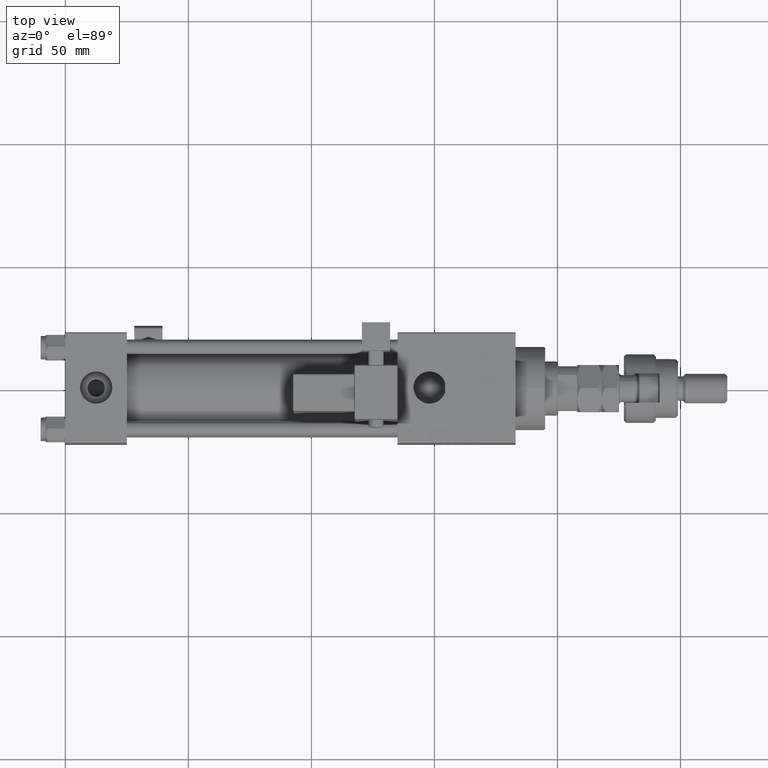
[diagram: clean part render]
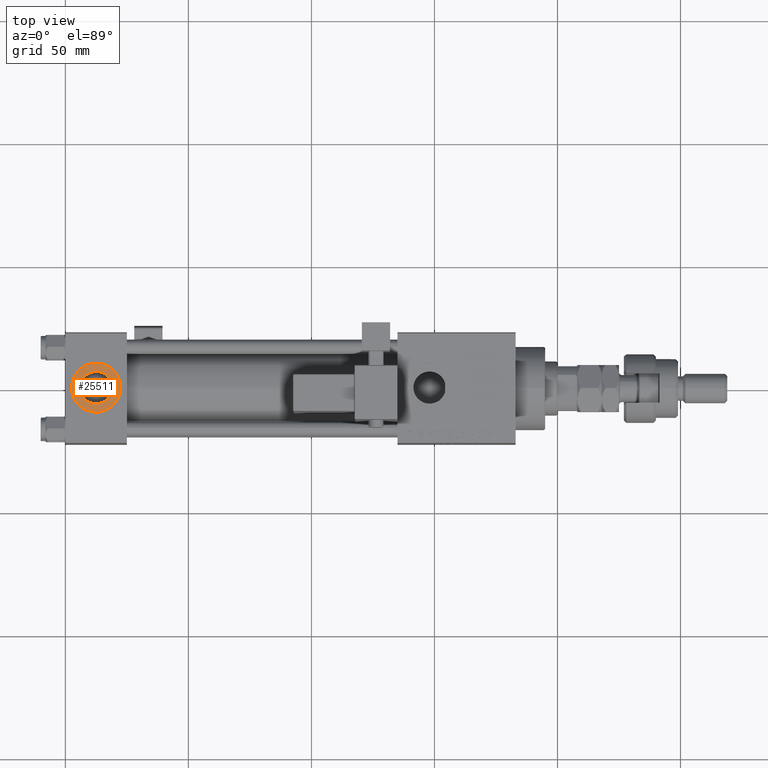
[diagram: same view with one face highlighted and labeled with its STEP entity id]
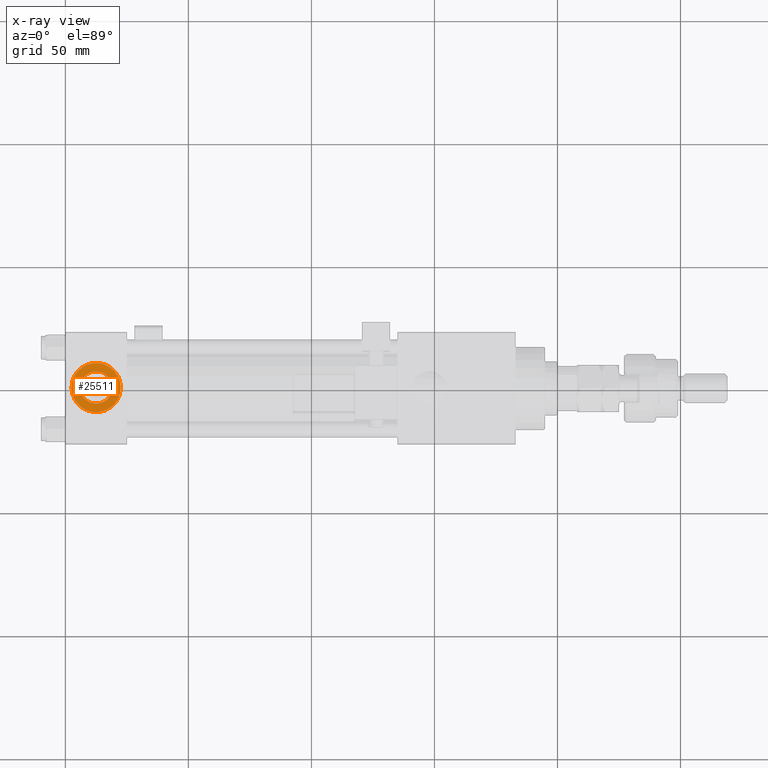
[diagram: x-ray of the same camera — body ghosted, the highlighted face saturated]
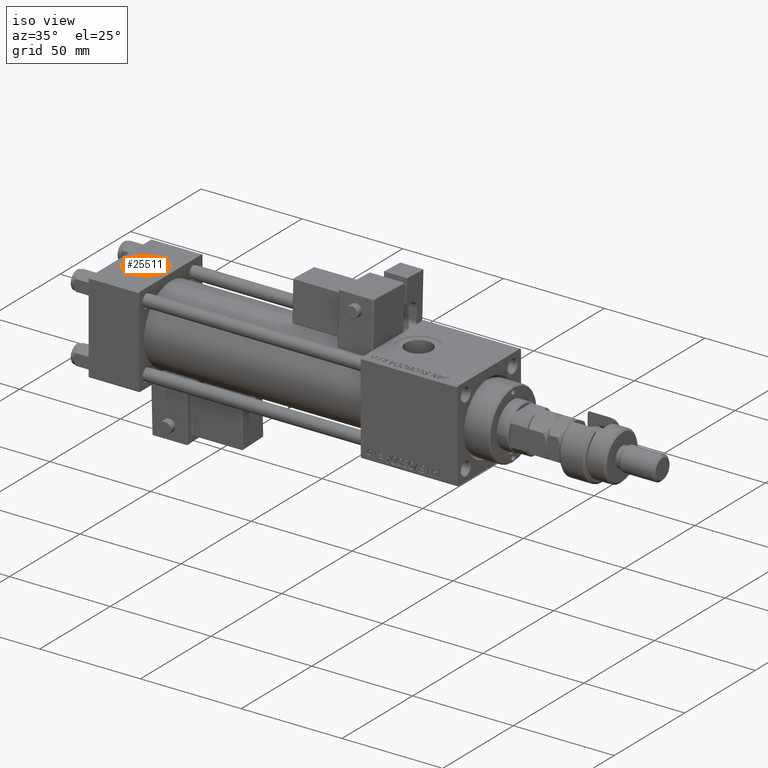
[diagram: same view with one face highlighted and labeled with its STEP entity id]
A machine part, top view. The second image highlights one B-rep face of the part: STEP entity #25511.
The next image is the same camera in x-ray: the body ghosted, the highlighted face saturated — about 0% of this face is hidden behind the body in this view.
A second angle (iso view) of the same face is appended — the face is thin or edge-on in the first view.
In plain terms, the highlighted planar face has unit normal (0, 0, 1).
Its self-contained STEP definition (entity closure, byte-faithful):
#1946 = CARTESIAN_POINT ( 'NONE',  ( 12.50000000000000000, -1.734723475976807094E-15, 22.30000000000000071 ) ) ;
#3364 = CIRCLE ( 'NONE', #51680, 6.579999999999999183 ) ;
#5596 = DIRECTION ( 'NONE',  ( 0.000000000000000000, 0.000000000000000000, 1.000000000000000000 ) ) ;
#7098 = VERTEX_POINT ( 'NONE', #25716 ) ;
#11673 = AXIS2_PLACEMENT_3D ( 'NONE', #25826, #46307, #17433 ) ;
#11856 = PLANE ( 'NONE',  #11673 ) ;
#12947 = FACE_OUTER_BOUND ( 'NONE', #37906, .T. ) ;
#13216 = CIRCLE ( 'NONE', #50802, 6.579999999999999183 ) ;
#17433 = DIRECTION ( 'NONE',  ( 1.000000000000000000, 0.000000000000000000, -0.000000000000000000 ) ) ;
#18747 = DIRECTION ( 'NONE',  ( 0.000000000000000000, 0.000000000000000000, 1.000000000000000000 ) ) ;
#19392 = EDGE_CURVE ( 'NONE', #32503, #38763, #21232, .T. ) ;
#19584 = EDGE_CURVE ( 'NONE', #35339, #7098, #13216, .T. ) ;
#20820 = FACE_BOUND ( 'NONE', #24720, .T. ) ;
#21232 = CIRCLE ( 'NONE', #28382, 9.999999999999998224 ) ;
#21485 = EDGE_CURVE ( 'NONE', #38763, #32503, #45516, .T. ) ;
#22727 = CARTESIAN_POINT ( 'NONE',  ( 19.07999999999999829, -1.734723475976807094E-15, 22.30000000000000071 ) ) ;
#23052 = DIRECTION ( 'NONE',  ( 0.000000000000000000, 0.000000000000000000, 1.000000000000000000 ) ) ;
#24442 = DIRECTION ( 'NONE',  ( 1.000000000000000000, 0.000000000000000000, 0.000000000000000000 ) ) ;
#24720 = EDGE_LOOP ( 'NONE', ( #37765, #27488 ) ) ;
#25511 = ADVANCED_FACE ( 'NONE', ( #20820, #12947 ), #11856, .T. ) ;
#25716 = CARTESIAN_POINT ( 'NONE',  ( 5.920000000000002593, -9.289058821378490386E-16, 22.30000000000000071 ) ) ;
#25826 = CARTESIAN_POINT ( 'NONE',  ( 12.50000000000000000, -1.734723475976807094E-15, 22.30000000000000071 ) ) ;
#26886 = DIRECTION ( 'NONE',  ( 1.000000000000000000, 0.000000000000000000, 0.000000000000000000 ) ) ;
#27488 = ORIENTED_EDGE ( 'NONE', *, *, #38598, .F. ) ;
#28382 = AXIS2_PLACEMENT_3D ( 'NONE', #53887, #23052, #36239 ) ;
#29737 = DIRECTION ( 'NONE',  ( 0.000000000000000000, 0.000000000000000000, 1.000000000000000000 ) ) ;
#32503 = VERTEX_POINT ( 'NONE', #35646 ) ;
#32734 = DIRECTION ( 'NONE',  ( 1.000000000000000000, 0.000000000000000000, 0.000000000000000000 ) ) ;
#32838 = CARTESIAN_POINT ( 'NONE',  ( 12.50000000000000000, -1.734723475976807094E-15, 22.30000000000000071 ) ) ;
#34876 = ORIENTED_EDGE ( 'NONE', *, *, #19392, .T. ) ;
#35277 = ORIENTED_EDGE ( 'NONE', *, *, #21485, .T. ) ;
#35339 = VERTEX_POINT ( 'NONE', #22727 ) ;
#35646 = CARTESIAN_POINT ( 'NONE',  ( 22.50000000000000000, -1.734723475976807094E-15, 22.30000000000000071 ) ) ;
#36239 = DIRECTION ( 'NONE',  ( 1.000000000000000000, 0.000000000000000000, 0.000000000000000000 ) ) ;
#37765 = ORIENTED_EDGE ( 'NONE', *, *, #19584, .F. ) ;
#37906 = EDGE_LOOP ( 'NONE', ( #34876, #35277 ) ) ;
#38347 = CARTESIAN_POINT ( 'NONE',  ( 2.500000000000003997, -5.100766768294543310E-16, 22.30000000000000071 ) ) ;
#38598 = EDGE_CURVE ( 'NONE', #7098, #35339, #3364, .T. ) ;
#38763 = VERTEX_POINT ( 'NONE', #38347 ) ;
#45516 = CIRCLE ( 'NONE', #53605, 9.999999999999998224 ) ;
#46307 = DIRECTION ( 'NONE',  ( 0.000000000000000000, 0.000000000000000000, 1.000000000000000000 ) ) ;
#50802 = AXIS2_PLACEMENT_3D ( 'NONE', #32838, #29737, #24442 ) ;
#51680 = AXIS2_PLACEMENT_3D ( 'NONE', #52400, #5596, #26886 ) ;
#52400 = CARTESIAN_POINT ( 'NONE',  ( 12.50000000000000000, -1.734723475976807094E-15, 22.30000000000000071 ) ) ;
#53605 = AXIS2_PLACEMENT_3D ( 'NONE', #1946, #18747, #32734 ) ;
#53887 = CARTESIAN_POINT ( 'NONE',  ( 12.50000000000000000, -1.734723475976807094E-15, 22.30000000000000071 ) ) ;